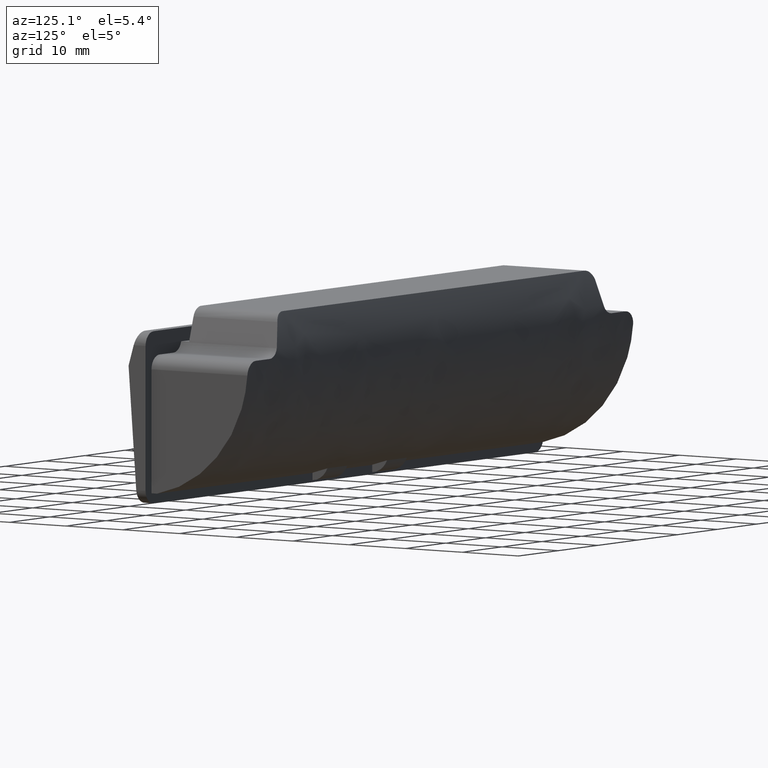
[diagram: clean part render]
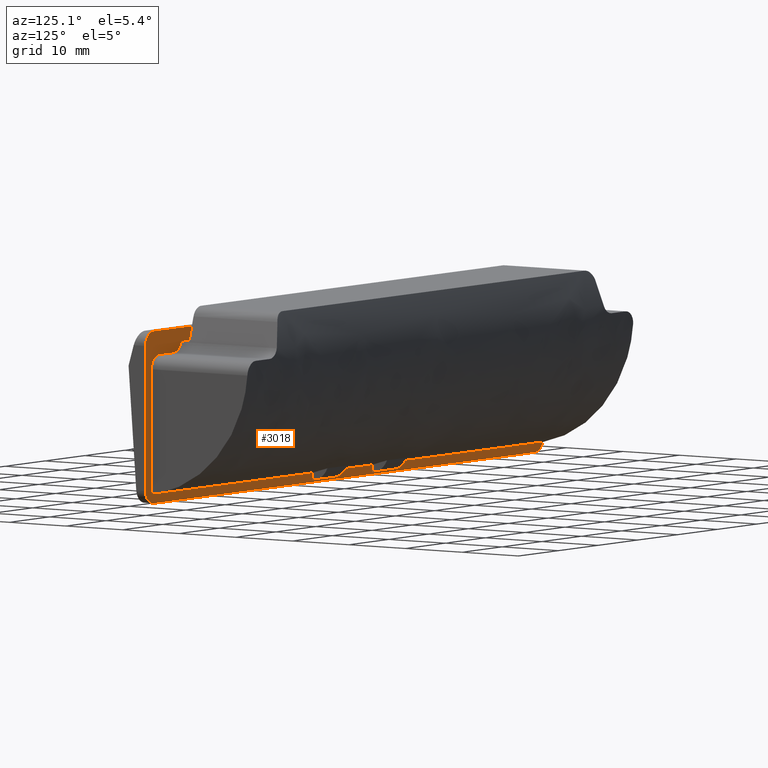
[diagram: same view with one face highlighted and labeled with its STEP entity id]
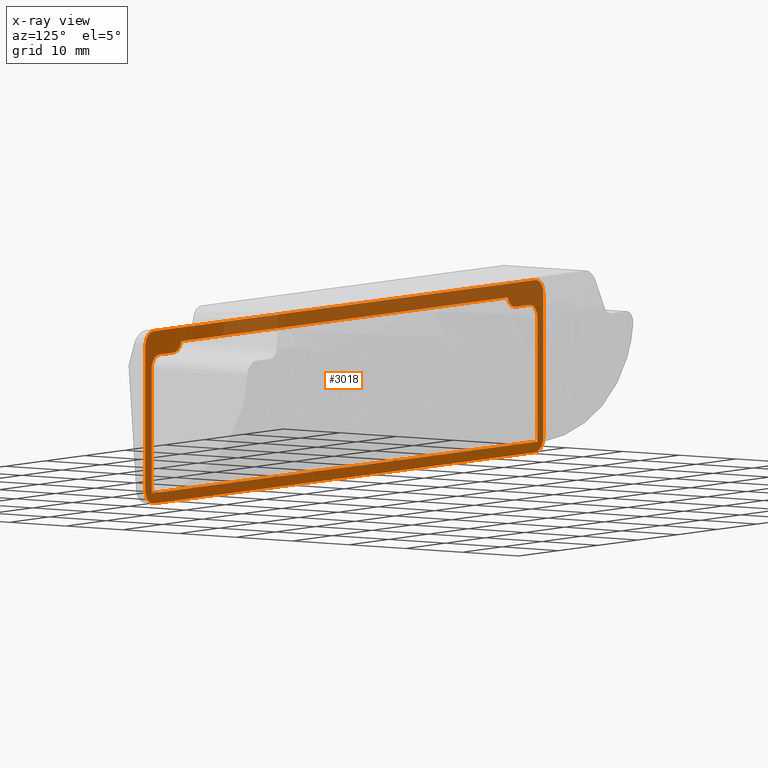
[diagram: x-ray of the same camera — body ghosted, the highlighted face saturated]
A machine part, auxiliary view. The second image highlights one B-rep face of the part: STEP entity #3018.
The next image is the same camera in x-ray: the body ghosted, the highlighted face saturated — about 47% of this face is hidden behind the body in this view.
In plain terms, the highlighted face is a freeform B-spline surface patch.
Its self-contained STEP definition (entity closure, byte-faithful):
#75=CARTESIAN_POINT('',(-48.0,0.0,-3.0));
#76=VERTEX_POINT('',#75);
#82=CARTESIAN_POINT('',(-50.0,0.0,-5.0));
#83=VERTEX_POINT('',#82);
#84=CARTESIAN_POINT('',(-50.0,0.0,-5.0));
#85=CARTESIAN_POINT('',(-50.0,0.0,-3.0));
#86=CARTESIAN_POINT('',(-48.0,0.0,-3.0));
#94=(BOUNDED_CURVE()B_SPLINE_CURVE(2,(#84,#85,#86),.UNSPECIFIED.,.F.,.U.)CURVE()GEOMETRIC_REPRESENTATION_ITEM()QUASI_UNIFORM_CURVE()RATIONAL_B_SPLINE_CURVE((1.0,0.707106781186548,1.0))REPRESENTATION_ITEM(''));
#95=EDGE_CURVE('',#83,#76,#94,.T.);
#136=CARTESIAN_POINT('',(50.0,0.0,-5.0));
#137=VERTEX_POINT('',#136);
#143=CARTESIAN_POINT('',(48.0,0.0,-3.0));
#144=VERTEX_POINT('',#143);
#145=CARTESIAN_POINT('',(48.0,0.0,-3.0));
#146=CARTESIAN_POINT('',(50.0,0.0,-3.0));
#147=CARTESIAN_POINT('',(50.0,0.0,-5.0));
#155=(BOUNDED_CURVE()B_SPLINE_CURVE(2,(#145,#146,#147),.UNSPECIFIED.,.F.,.U.)CURVE()GEOMETRIC_REPRESENTATION_ITEM()QUASI_UNIFORM_CURVE()RATIONAL_B_SPLINE_CURVE((1.0,0.707106781186548,1.0))REPRESENTATION_ITEM(''));
#156=EDGE_CURVE('',#144,#137,#155,.T.);
#180=CARTESIAN_POINT('',(50.0,0.0,-26.0));
#181=VERTEX_POINT('',#180);
#182=CARTESIAN_POINT('',(48.0,0.0,-28.0));
#183=VERTEX_POINT('',#182);
#184=CARTESIAN_POINT('',(50.0,0.0,-26.0));
#185=CARTESIAN_POINT('',(50.0,0.0,-27.999999999999996));
#186=CARTESIAN_POINT('',(48.0,0.0,-28.0));
#194=(BOUNDED_CURVE()B_SPLINE_CURVE(2,(#184,#185,#186),.UNSPECIFIED.,.F.,.U.)CURVE()GEOMETRIC_REPRESENTATION_ITEM()QUASI_UNIFORM_CURVE()RATIONAL_B_SPLINE_CURVE((1.0,0.707106781186548,1.0))REPRESENTATION_ITEM(''));
#195=EDGE_CURVE('',#181,#183,#194,.T.);
#241=CARTESIAN_POINT('',(-48.0,0.0,-28.0));
#242=VERTEX_POINT('',#241);
#243=CARTESIAN_POINT('',(-50.0,0.0,-26.0));
#244=VERTEX_POINT('',#243);
#245=CARTESIAN_POINT('',(-48.0,0.0,-28.0));
#246=CARTESIAN_POINT('',(-50.0,0.0,-27.999999999999996));
#247=CARTESIAN_POINT('',(-50.0,0.0,-26.0));
#255=(BOUNDED_CURVE()B_SPLINE_CURVE(2,(#245,#246,#247),.UNSPECIFIED.,.F.,.U.)CURVE()GEOMETRIC_REPRESENTATION_ITEM()QUASI_UNIFORM_CURVE()RATIONAL_B_SPLINE_CURVE((1.0,0.707106781186548,1.0))REPRESENTATION_ITEM(''));
#256=EDGE_CURVE('',#242,#244,#255,.T.);
#408=CARTESIAN_POINT('',(-42.977148924420902,0.0,-6.500000000000000));
#409=VERTEX_POINT('',#408);
#415=CARTESIAN_POINT('',(-41.065590794552897,0.0,-5.088171332296550));
#416=VERTEX_POINT('',#415);
#417=CARTESIAN_POINT('',(-41.065590794552890,0.0,-5.088171332296555));
#418=CARTESIAN_POINT('',(-41.499999319976560,0.0,-6.500000000000000));
#419=CARTESIAN_POINT('',(-42.977148924420902,0.0,-6.500000000000000));
#427=(BOUNDED_CURVE()B_SPLINE_CURVE(2,(#417,#418,#419),.UNSPECIFIED.,.F.,.U.)CURVE()GEOMETRIC_REPRESENTATION_ITEM()QUASI_UNIFORM_CURVE()RATIONAL_B_SPLINE_CURVE((1.0,0.804389727106294,1.0))REPRESENTATION_ITEM(''));
#428=EDGE_CURVE('',#416,#409,#427,.T.);
#486=CARTESIAN_POINT('',(-48.500000000000000,0.0,-8.500000000000000));
#487=VERTEX_POINT('',#486);
#493=CARTESIAN_POINT('',(-46.500000000000000,0.0,-6.500000000000000));
#494=VERTEX_POINT('',#493);
#495=CARTESIAN_POINT('',(-46.500000000000000,0.0,-6.500000000000001));
#496=CARTESIAN_POINT('',(-48.500000000000007,0.0,-6.500000000000003));
#497=CARTESIAN_POINT('',(-48.500000000000000,0.0,-8.500000000000000));
#505=(BOUNDED_CURVE()B_SPLINE_CURVE(2,(#495,#496,#497),.UNSPECIFIED.,.F.,.U.)CURVE()GEOMETRIC_REPRESENTATION_ITEM()QUASI_UNIFORM_CURVE()RATIONAL_B_SPLINE_CURVE((1.0,0.707106781186548,1.0))REPRESENTATION_ITEM(''));
#506=EDGE_CURVE('',#494,#487,#505,.T.);
#630=CARTESIAN_POINT('',(41.065590794552897,-1.005784E-014,-5.088171332296550));
#631=VERTEX_POINT('',#630);
#637=CARTESIAN_POINT('',(42.977148924420902,-1.052602E-014,-6.500000000000000));
#638=VERTEX_POINT('',#637);
#639=CARTESIAN_POINT('',(42.977148924420902,0.0,-6.500000000000000));
#640=CARTESIAN_POINT('',(41.499999319976567,0.0,-6.500000000000001));
#641=CARTESIAN_POINT('',(41.065590794552890,0.0,-5.088171332296557));
#649=(BOUNDED_CURVE()B_SPLINE_CURVE(2,(#639,#640,#641),.UNSPECIFIED.,.F.,.U.)CURVE()GEOMETRIC_REPRESENTATION_ITEM()QUASI_UNIFORM_CURVE()RATIONAL_B_SPLINE_CURVE((1.0,0.804389727106295,1.0))REPRESENTATION_ITEM(''));
#650=EDGE_CURVE('',#638,#631,#649,.T.);
#706=CARTESIAN_POINT('',(46.500000000000000,-1.138884E-014,-6.500000000000000));
#707=VERTEX_POINT('',#706);
#713=CARTESIAN_POINT('',(48.500000000000000,0.0,-8.500000000000000));
#714=VERTEX_POINT('',#713);
#715=CARTESIAN_POINT('',(48.500000000000000,0.0,-8.500000000000000));
#716=CARTESIAN_POINT('',(48.500000000000007,0.0,-6.500000000000003));
#717=CARTESIAN_POINT('',(46.500000000000000,0.0,-6.500000000000001));
#725=(BOUNDED_CURVE()B_SPLINE_CURVE(2,(#715,#716,#717),.UNSPECIFIED.,.F.,.U.)CURVE()GEOMETRIC_REPRESENTATION_ITEM()QUASI_UNIFORM_CURVE()RATIONAL_B_SPLINE_CURVE((1.0,0.707106781186548,1.0))REPRESENTATION_ITEM(''));
#726=EDGE_CURVE('',#714,#707,#725,.T.);
#2603=CARTESIAN_POINT('',(46.500000000000000,-1.138884E-014,-6.500000000000000));
#2604=CARTESIAN_POINT('',(42.977148924420902,-1.052602E-014,-6.500000000000000));
#2605=QUASI_UNIFORM_CURVE('',1,(#2603,#2604),.UNSPECIFIED.,.F.,.U.);
#2606=EDGE_CURVE('',#707,#638,#2605,.T.);
#2623=CARTESIAN_POINT('',(41.038461172295051,-1.008163E-014,-5.0));
#2624=VERTEX_POINT('',#2623);
#2625=CARTESIAN_POINT('',(41.065590794552897,-1.005784E-014,-5.088171332296550));
#2626=CARTESIAN_POINT('',(41.038461172295051,-1.008163E-014,-5.0));
#2627=QUASI_UNIFORM_CURVE('',1,(#2625,#2626),.UNSPECIFIED.,.F.,.U.);
#2628=EDGE_CURVE('',#631,#2624,#2627,.T.);
#2671=CARTESIAN_POINT('',(-46.500000000000000,0.0,-6.500000000000000));
#2672=CARTESIAN_POINT('',(-42.977148924420902,0.0,-6.500000000000000));
#2673=QUASI_UNIFORM_CURVE('',1,(#2671,#2672),.UNSPECIFIED.,.F.,.U.);
#2674=EDGE_CURVE('',#494,#409,#2673,.T.);
#2699=CARTESIAN_POINT('',(-41.038461172295051,0.0,-5.0));
#2700=VERTEX_POINT('',#2699);
#2701=CARTESIAN_POINT('',(-41.065590794552897,0.0,-5.088171332296550));
#2702=CARTESIAN_POINT('',(-41.038461172295051,0.0,-5.0));
#2703=QUASI_UNIFORM_CURVE('',1,(#2701,#2702),.UNSPECIFIED.,.F.,.U.);
#2704=EDGE_CURVE('',#416,#2700,#2703,.T.);
#2727=CARTESIAN_POINT('',(-48.500000000000000,0.0,-26.500000000000000));
#2728=VERTEX_POINT('',#2727);
#2729=CARTESIAN_POINT('',(-48.500000000000000,0.0,-8.500000000000000));
#2730=CARTESIAN_POINT('',(-48.500000000000000,0.0,-26.500000000000000));
#2731=QUASI_UNIFORM_CURVE('',1,(#2729,#2730),.UNSPECIFIED.,.F.,.U.);
#2732=EDGE_CURVE('',#487,#2728,#2731,.T.);
#2779=CARTESIAN_POINT('',(48.500000000000000,0.0,-26.500000000000000));
#2780=VERTEX_POINT('',#2779);
#2781=CARTESIAN_POINT('',(48.500000000000000,0.0,-8.500000000000000));
#2782=CARTESIAN_POINT('',(48.500000000000000,0.0,-26.500000000000000));
#2783=QUASI_UNIFORM_CURVE('',1,(#2781,#2782),.UNSPECIFIED.,.F.,.U.);
#2784=EDGE_CURVE('',#714,#2780,#2783,.T.);
#2799=CARTESIAN_POINT('',(41.038461172295051,-1.008163E-014,-5.0));
#2800=CARTESIAN_POINT('',(-41.038461172295051,0.0,-5.0));
#2801=QUASI_UNIFORM_CURVE('',1,(#2799,#2800),.UNSPECIFIED.,.F.,.U.);
#2802=EDGE_CURVE('',#2624,#2700,#2801,.T.);
#2903=CARTESIAN_POINT('',(48.500000000000000,0.0,-26.500000000000000));
#2904=CARTESIAN_POINT('',(-48.500000000000000,0.0,-26.500000000000000));
#2905=QUASI_UNIFORM_CURVE('',1,(#2903,#2904),.UNSPECIFIED.,.F.,.U.);
#2906=EDGE_CURVE('',#2780,#2728,#2905,.T.);
#2916=CARTESIAN_POINT('',(-50.0,0.0,-5.0));
#2917=CARTESIAN_POINT('',(-50.0,0.0,-26.0));
#2918=QUASI_UNIFORM_CURVE('',1,(#2916,#2917),.UNSPECIFIED.,.F.,.U.);
#2919=EDGE_CURVE('',#83,#244,#2918,.T.);
#2951=CARTESIAN_POINT('',(50.0,0.0,-5.0));
#2952=CARTESIAN_POINT('',(50.0,0.0,-26.0));
#2953=QUASI_UNIFORM_CURVE('',1,(#2951,#2952),.UNSPECIFIED.,.F.,.U.);
#2954=EDGE_CURVE('',#137,#181,#2953,.T.);
#2976=CARTESIAN_POINT('',(48.0,0.0,-28.0));
#2977=CARTESIAN_POINT('',(-48.0,0.0,-28.0));
#2978=QUASI_UNIFORM_CURVE('',1,(#2976,#2977),.UNSPECIFIED.,.F.,.U.);
#2979=EDGE_CURVE('',#183,#242,#2978,.T.);
#2985=CARTESIAN_POINT('',(-54.994999806180601,0.0,-29.248749951545161));
#2986=CARTESIAN_POINT('',(-54.994999806180601,0.0,-1.751249377902598));
#2987=CARTESIAN_POINT('',(54.995002488389623,0.0,-29.248749951545161));
#2988=CARTESIAN_POINT('',(54.995002488389623,0.0,-1.751249377902598));
#2989=B_SPLINE_SURFACE_WITH_KNOTS('',1,1,((#2985,#2987),(#2986,#2988)),.UNSPECIFIED.,.F.,.F.,.U.,(2,2),(2,2),(0.0,27.497500573642562),(0.0,109.990002294570200),.UNSPECIFIED.);
#2990=ORIENTED_EDGE('',*,*,#2979,.T.);
#2991=ORIENTED_EDGE('',*,*,#256,.T.);
#2992=ORIENTED_EDGE('',*,*,#2919,.F.);
#2993=ORIENTED_EDGE('',*,*,#95,.T.);
#2994=CARTESIAN_POINT('',(48.0,0.0,-3.0));
#2995=CARTESIAN_POINT('',(-48.0,0.0,-3.0));
#2996=QUASI_UNIFORM_CURVE('',1,(#2994,#2995),.UNSPECIFIED.,.F.,.U.);
#2997=EDGE_CURVE('',#144,#76,#2996,.T.);
#2998=ORIENTED_EDGE('',*,*,#2997,.F.);
#2999=ORIENTED_EDGE('',*,*,#156,.T.);
#3000=ORIENTED_EDGE('',*,*,#2954,.T.);
#3001=ORIENTED_EDGE('',*,*,#195,.T.);
#3002=EDGE_LOOP('',(#2990,#2991,#2992,#2993,#2998,#2999,#3000,#3001));
#3003=FACE_OUTER_BOUND('',#3002,.T.);
#3004=ORIENTED_EDGE('',*,*,#2704,.F.);
#3005=ORIENTED_EDGE('',*,*,#428,.T.);
#3006=ORIENTED_EDGE('',*,*,#2674,.F.);
#3007=ORIENTED_EDGE('',*,*,#506,.T.);
#3008=ORIENTED_EDGE('',*,*,#2732,.T.);
#3009=ORIENTED_EDGE('',*,*,#2906,.F.);
#3010=ORIENTED_EDGE('',*,*,#2784,.F.);
#3011=ORIENTED_EDGE('',*,*,#726,.T.);
#3012=ORIENTED_EDGE('',*,*,#2606,.T.);
#3013=ORIENTED_EDGE('',*,*,#650,.T.);
#3014=ORIENTED_EDGE('',*,*,#2628,.T.);
#3015=ORIENTED_EDGE('',*,*,#2802,.T.);
#3016=EDGE_LOOP('',(#3004,#3005,#3006,#3007,#3008,#3009,#3010,#3011,#3012,#3013,#3014,#3015));
#3017=FACE_BOUND('',#3016,.T.);
#3018=ADVANCED_FACE('',(#3003,#3017),#2989,.T.);